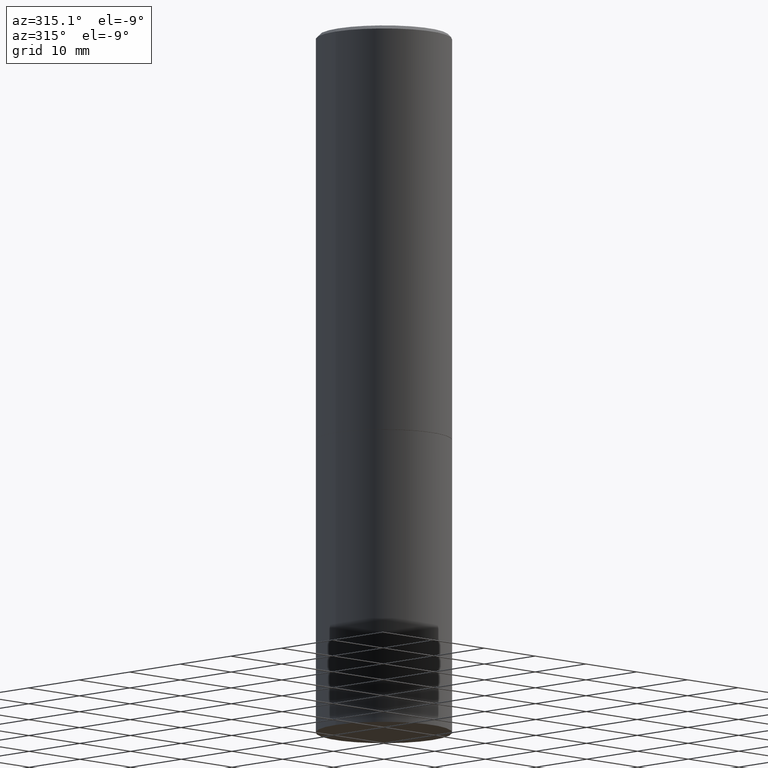
[diagram: clean part render]
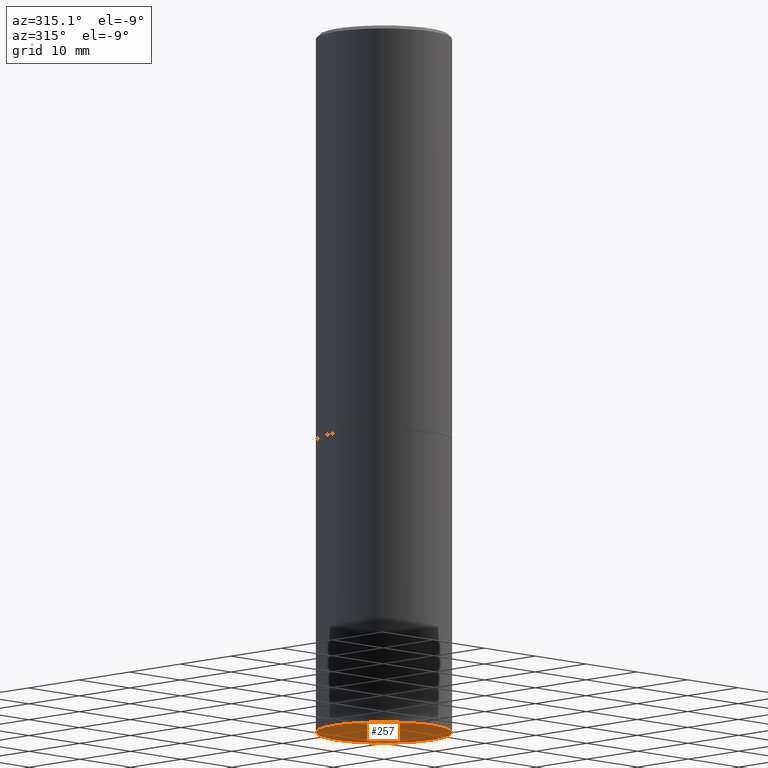
[diagram: same view with one face highlighted and labeled with its STEP entity id]
A machine part, auxiliary view. The second image highlights one B-rep face of the part: STEP entity #257.
In plain terms, the highlighted planar face has unit normal (0, -0, -1).
Its self-contained STEP definition (entity closure, byte-faithful):
#5 = DIRECTION ( 'NONE',  ( -2.445468806185136597E-29, 3.491481338843145583E-15, 1.000000000000000000 ) ) ;
#14 = ORIENTED_EDGE ( 'NONE', *, *, #238, .F. ) ;
#20 = PLANE ( 'NONE',  #136 ) ;
#29 = AXIS2_PLACEMENT_3D ( 'NONE', #314, #5, #319 ) ;
#41 = FACE_OUTER_BOUND ( 'NONE', #299, .T. ) ;
#54 = VERTEX_POINT ( 'NONE', #217 ) ;
#76 = EDGE_CURVE ( 'NONE', #54, #247, #135, .T. ) ;
#113 = DIRECTION ( 'NONE',  ( -2.445468806185136597E-29, 3.491481338843145583E-15, 1.000000000000000000 ) ) ;
#116 = CARTESIAN_POINT ( 'NONE',  ( 9.476191623967404313E-29, -1.352949018801718908E-14, -3.875000000000000000 ) ) ;
#127 = DIRECTION ( 'NONE',  ( 2.438088387897960049E-29, -3.491481338843145188E-15, -1.000000000000000000 ) ) ;
#135 = CIRCLE ( 'NONE', #29, 0.3750000000000000555 ) ;
#136 = AXIS2_PLACEMENT_3D ( 'NONE', #291, #127, #207 ) ;
#166 = CIRCLE ( 'NONE', #256, 0.3750000000000000555 ) ;
#177 = CARTESIAN_POINT ( 'NONE',  ( -0.3750000000000000555, -8.028126341106757280E-15, -3.875000000000000000 ) ) ;
#207 = DIRECTION ( 'NONE',  ( -1.000000000000000000, 6.982962677686265922E-15, -4.876176775795935793E-29 ) ) ;
#217 = CARTESIAN_POINT ( 'NONE',  ( 0.3750000000000000555, -1.614810119214954068E-14, -3.875000000000000000 ) ) ;
#226 = DIRECTION ( 'NONE',  ( 1.000000000000000000, -6.982962677686266711E-15, 0.000000000000000000 ) ) ;
#238 = EDGE_CURVE ( 'NONE', #247, #54, #166, .T. ) ;
#247 = VERTEX_POINT ( 'NONE', #177 ) ;
#256 = AXIS2_PLACEMENT_3D ( 'NONE', #116, #113, #226 ) ;
#257 = ADVANCED_FACE ( 'NONE', ( #41 ), #20, .T. ) ;
#291 = CARTESIAN_POINT ( 'NONE',  ( 2.618611004132444680E-15, 0.3749999999999865108, -3.875000000000001332 ) ) ;
#299 = EDGE_LOOP ( 'NONE', ( #341, #14 ) ) ;
#314 = CARTESIAN_POINT ( 'NONE',  ( 9.476191623967404313E-29, -1.352949018801718908E-14, -3.875000000000000000 ) ) ;
#319 = DIRECTION ( 'NONE',  ( 1.000000000000000000, -6.982962677686266711E-15, 0.000000000000000000 ) ) ;
#341 = ORIENTED_EDGE ( 'NONE', *, *, #76, .F. ) ;